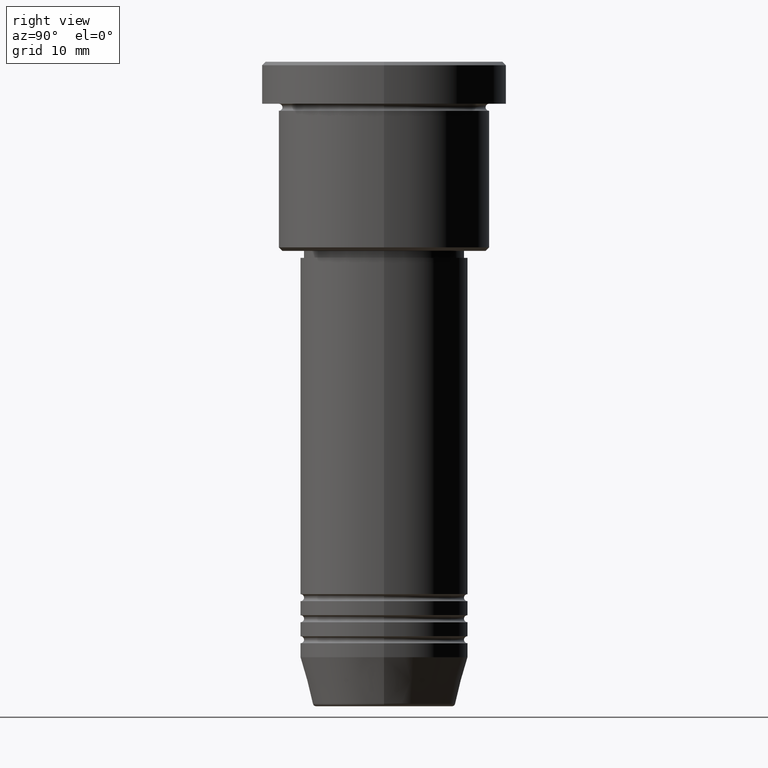
[diagram: clean part render]
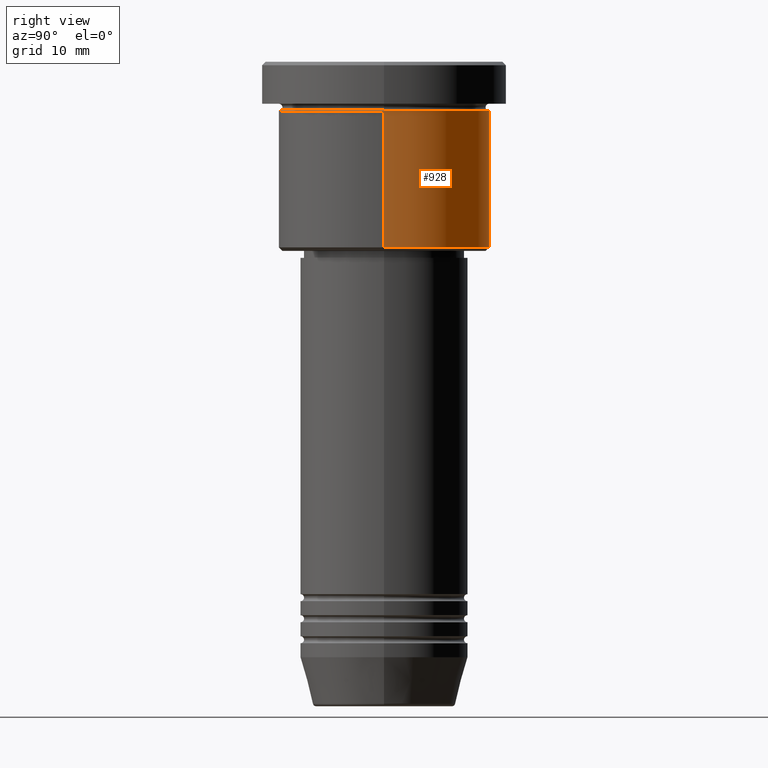
[diagram: same view with one face highlighted and labeled with its STEP entity id]
A machine part, right view. The second image highlights one B-rep face of the part: STEP entity #928.
In plain terms, the highlighted cylindrical surface (partial cylindrical patch) has radius 15 mm, axis along (-0, -0, 1).
Its self-contained STEP definition (entity closure, byte-faithful):
#17 = AXIS2_PLACEMENT_3D ( 'NONE', #546, #102, #996 ) ;
#51 = CARTESIAN_POINT ( 'NONE',  ( 15.00000000000000000, 0.000000000000000000, -6.999999999999995559 ) ) ;
#58 = EDGE_LOOP ( 'NONE', ( #534, #570, #1051, #673 ) ) ;
#90 = VECTOR ( 'NONE', #518, 1000.000000000000000 ) ;
#102 = DIRECTION ( 'NONE',  ( -0.000000000000000000, -0.000000000000000000, 1.000000000000000000 ) ) ;
#123 = DIRECTION ( 'NONE',  ( -0.000000000000000000, -0.000000000000000000, 1.000000000000000000 ) ) ;
#212 = VERTEX_POINT ( 'NONE', #1098 ) ;
#301 = VECTOR ( 'NONE', #704, 1000.000000000000000 ) ;
#327 = EDGE_CURVE ( 'NONE', #527, #941, #923, .T. ) ;
#335 = CARTESIAN_POINT ( 'NONE',  ( 15.00000000000000000, 0.000000000000000000, 0.000000000000000000 ) ) ;
#409 = CARTESIAN_POINT ( 'NONE',  ( 0.000000000000000000, 0.000000000000000000, -6.999999999999995559 ) ) ;
#414 = DIRECTION ( 'NONE',  ( -0.000000000000000000, -0.000000000000000000, 1.000000000000000000 ) ) ;
#425 = CARTESIAN_POINT ( 'NONE',  ( -15.00000000000000000, 1.836970198721029589E-15, -6.999999999999995559 ) ) ;
#467 = CIRCLE ( 'NONE', #17, 15.00000000000000000 ) ;
#518 = DIRECTION ( 'NONE',  ( -0.000000000000000000, -0.000000000000000000, 1.000000000000000000 ) ) ;
#527 = VERTEX_POINT ( 'NONE', #51 ) ;
#534 = ORIENTED_EDGE ( 'NONE', *, *, #1014, .T. ) ;
#536 = EDGE_CURVE ( 'NONE', #885, #527, #597, .T. ) ;
#546 = CARTESIAN_POINT ( 'NONE',  ( 0.000000000000000000, 0.000000000000000000, -26.49999999999998579 ) ) ;
#570 = ORIENTED_EDGE ( 'NONE', *, *, #874, .T. ) ;
#597 = LINE ( 'NONE', #335, #301 ) ;
#599 = AXIS2_PLACEMENT_3D ( 'NONE', #409, #123, #775 ) ;
#614 = CYLINDRICAL_SURFACE ( 'NONE', #745, 15.00000000000000000 ) ;
#673 = ORIENTED_EDGE ( 'NONE', *, *, #536, .F. ) ;
#689 = LINE ( 'NONE', #871, #90 ) ;
#704 = DIRECTION ( 'NONE',  ( -0.000000000000000000, -0.000000000000000000, 1.000000000000000000 ) ) ;
#745 = AXIS2_PLACEMENT_3D ( 'NONE', #1153, #414, #789 ) ;
#775 = DIRECTION ( 'NONE',  ( 1.000000000000000000, 0.000000000000000000, 0.000000000000000000 ) ) ;
#789 = DIRECTION ( 'NONE',  ( 1.000000000000000000, 0.000000000000000000, 0.000000000000000000 ) ) ;
#871 = CARTESIAN_POINT ( 'NONE',  ( -15.00000000000000000, 1.836970198721029589E-15, 0.000000000000000000 ) ) ;
#874 = EDGE_CURVE ( 'NONE', #212, #941, #689, .T. ) ;
#878 = CARTESIAN_POINT ( 'NONE',  ( 15.00000000000000000, 0.000000000000000000, -26.49999999999998579 ) ) ;
#885 = VERTEX_POINT ( 'NONE', #878 ) ;
#923 = CIRCLE ( 'NONE', #599, 15.00000000000000000 ) ;
#928 = ADVANCED_FACE ( 'NONE', ( #1168 ), #614, .T. ) ;
#941 = VERTEX_POINT ( 'NONE', #425 ) ;
#996 = DIRECTION ( 'NONE',  ( -1.000000000000000000, 0.000000000000000000, 0.000000000000000000 ) ) ;
#1014 = EDGE_CURVE ( 'NONE', #885, #212, #467, .T. ) ;
#1051 = ORIENTED_EDGE ( 'NONE', *, *, #327, .F. ) ;
#1098 = CARTESIAN_POINT ( 'NONE',  ( -15.00000000000000000, 1.836970198721029589E-15, -26.49999999999998579 ) ) ;
#1153 = CARTESIAN_POINT ( 'NONE',  ( 0.000000000000000000, 0.000000000000000000, 0.000000000000000000 ) ) ;
#1168 = FACE_OUTER_BOUND ( 'NONE', #58, .T. ) ;